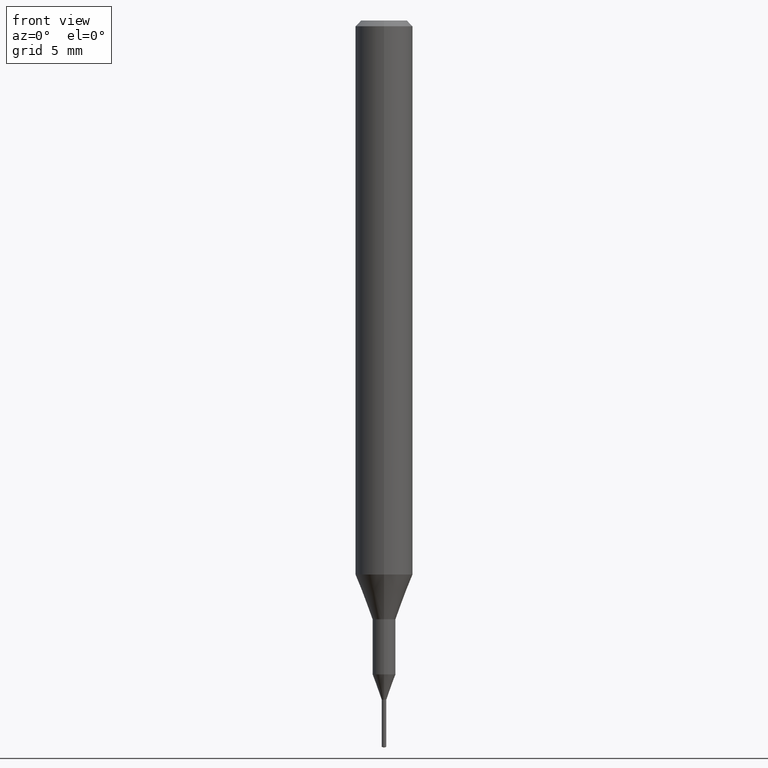
[diagram: clean part render]
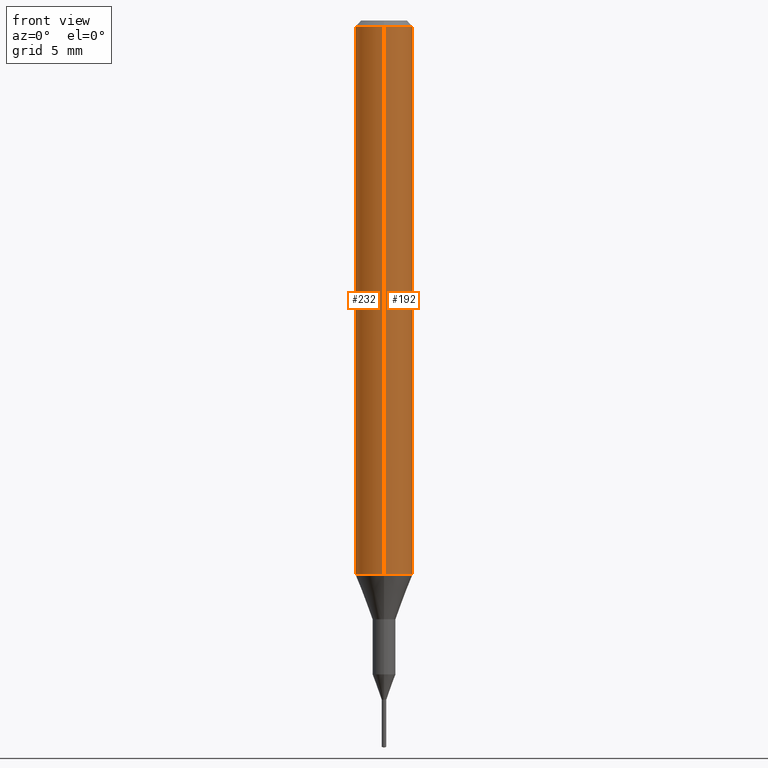
[diagram: same view with one multi-face feature highlighted, each face labeled with its STEP entity id]
A machine part, front view. The highlighted faces form ONE feature: a constant-radius fillet chain: 2 tangent blend faces with common blend radius 1.5 mm. The faces share edges in the B-rep.
Their STEP definitions:
[1] entity #232 (Cylinder):
#148=VERTEX_POINT('',#334);
#172=VERTEX_POINT('',#362);
#194=EDGE_CURVE('',#172,#148,#385,.T.);
#216=EDGE_CURVE('',#266,#248,#408,.T.);
#222=EDGE_CURVE('',#148,#266,#415,.T.);
#232=ADVANCED_FACE('',(#425),#426,.T.);
#248=VERTEX_POINT('',#445);
#264=EDGE_CURVE('',#172,#248,#461,.T.);
#266=VERTEX_POINT('',#463);
#334=CARTESIAN_POINT('',(1.83690953073357E-016,-1.5,-0.300000000000001));
#362=CARTESIAN_POINT('',(1.83690953073357E-016,-1.5,-28.955));
#385=LINE('',#592,#593);
#408=LINE('',#630,#631);
#415=CIRCLE('',#640,1.5);
#425=FACE_OUTER_BOUND('',#653,.T.);
#426=CYLINDRICAL_SURFACE('',#654,1.5);
#445=CARTESIAN_POINT('',(0.0,1.5,-28.955));
#461=CIRCLE('',#701,1.5);
#463=CARTESIAN_POINT('',(0.0,1.5,-0.300000000000001));
#592=CARTESIAN_POINT('',(1.83690953073357E-016,-1.5,-14.6275));
#593=VECTOR('',#847,1.0);
#630=CARTESIAN_POINT('',(-1.83690953073357E-016,1.5,-14.6275));
#631=VECTOR('',#865,1.0);
#640=AXIS2_PLACEMENT_3D('',#875,#876,#877);
#653=EDGE_LOOP('',(#888,#889,#890,#891));
#654=AXIS2_PLACEMENT_3D('',#892,#893,#894);
#701=AXIS2_PLACEMENT_3D('',#927,#928,#929);
#847=DIRECTION('',(-0.0,-0.0,1.0));
#865=DIRECTION('',(0.0,0.0,-1.0));
#875=CARTESIAN_POINT('',(0.0,0.0,-0.300000000000001));
#876=DIRECTION('',(0.0,0.0,-1.0));
#877=DIRECTION('',(0.0,1.0,0.0));
#888=ORIENTED_EDGE('',*,*,#216,.T.);
#889=ORIENTED_EDGE('',*,*,#264,.F.);
#890=ORIENTED_EDGE('',*,*,#194,.T.);
#891=ORIENTED_EDGE('',*,*,#222,.T.);
#892=CARTESIAN_POINT('',(0.0,0.0,-14.6275));
#893=DIRECTION('',(-0.0,-0.0,1.0));
#894=DIRECTION('',(0.0,1.0,0.0));
#927=CARTESIAN_POINT('',(0.0,0.0,-28.955));
#928=DIRECTION('',(0.0,0.0,-1.0));
#929=DIRECTION('',(0.0,1.0,0.0));
[2] entity #192 (Cylinder):
#148=VERTEX_POINT('',#334);
#160=EDGE_CURVE('',#266,#148,#348,.T.);
#172=VERTEX_POINT('',#362);
#192=ADVANCED_FACE('',(#382),#383,.T.);
#194=EDGE_CURVE('',#172,#148,#385,.T.);
#216=EDGE_CURVE('',#266,#248,#408,.T.);
#230=EDGE_CURVE('',#248,#172,#423,.T.);
#248=VERTEX_POINT('',#445);
#266=VERTEX_POINT('',#463);
#334=CARTESIAN_POINT('',(1.83690953073357E-016,-1.5,-0.300000000000001));
#348=CIRCLE('',#545,1.5);
#362=CARTESIAN_POINT('',(1.83690953073357E-016,-1.5,-28.955));
#382=FACE_OUTER_BOUND('',#588,.T.);
#383=CYLINDRICAL_SURFACE('',#589,1.5);
#385=LINE('',#592,#593);
#408=LINE('',#630,#631);
#423=CIRCLE('',#651,1.5);
#445=CARTESIAN_POINT('',(0.0,1.5,-28.955));
#463=CARTESIAN_POINT('',(0.0,1.5,-0.300000000000001));
#545=AXIS2_PLACEMENT_3D('',#804,#805,#806);
#588=EDGE_LOOP('',(#840,#841,#842,#843));
#589=AXIS2_PLACEMENT_3D('',#844,#845,#846);
#592=CARTESIAN_POINT('',(1.83690953073357E-016,-1.5,-14.6275));
#593=VECTOR('',#847,1.0);
#630=CARTESIAN_POINT('',(-1.83690953073357E-016,1.5,-14.6275));
#631=VECTOR('',#865,1.0);
#651=AXIS2_PLACEMENT_3D('',#884,#885,#886);
#804=CARTESIAN_POINT('',(0.0,0.0,-0.300000000000001));
#805=DIRECTION('',(0.0,0.0,-1.0));
#806=DIRECTION('',(0.0,1.0,0.0));
#840=ORIENTED_EDGE('',*,*,#216,.F.);
#841=ORIENTED_EDGE('',*,*,#160,.T.);
#842=ORIENTED_EDGE('',*,*,#194,.F.);
#843=ORIENTED_EDGE('',*,*,#230,.F.);
#844=CARTESIAN_POINT('',(0.0,0.0,-14.6275));
#845=DIRECTION('',(-0.0,-0.0,1.0));
#846=DIRECTION('',(0.0,1.0,0.0));
#847=DIRECTION('',(-0.0,-0.0,1.0));
#865=DIRECTION('',(0.0,0.0,-1.0));
#884=CARTESIAN_POINT('',(0.0,0.0,-28.955));
#885=DIRECTION('',(0.0,0.0,-1.0));
#886=DIRECTION('',(0.0,1.0,0.0));